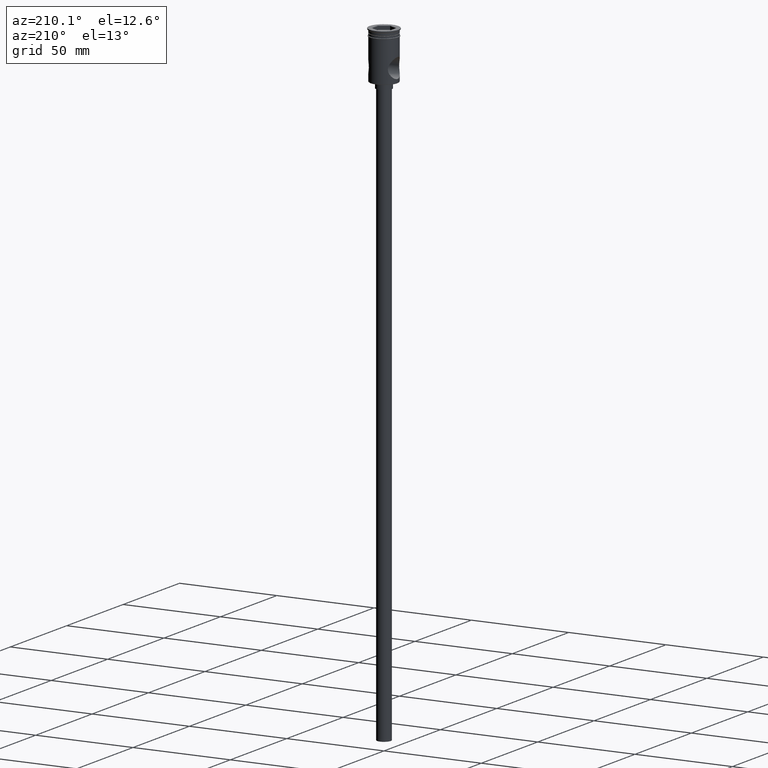
[diagram: clean part render]
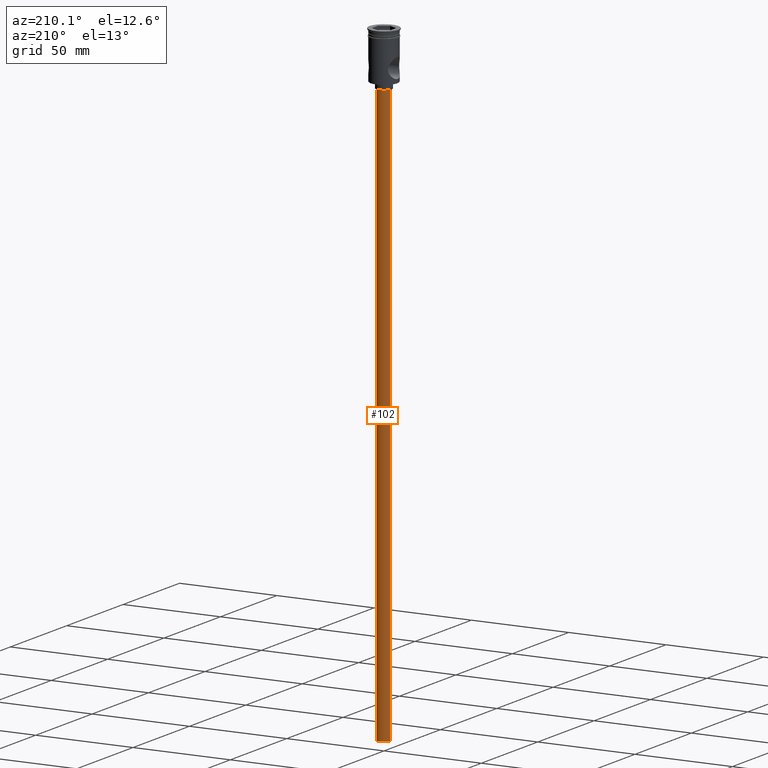
[diagram: same view with one face highlighted and labeled with its STEP entity id]
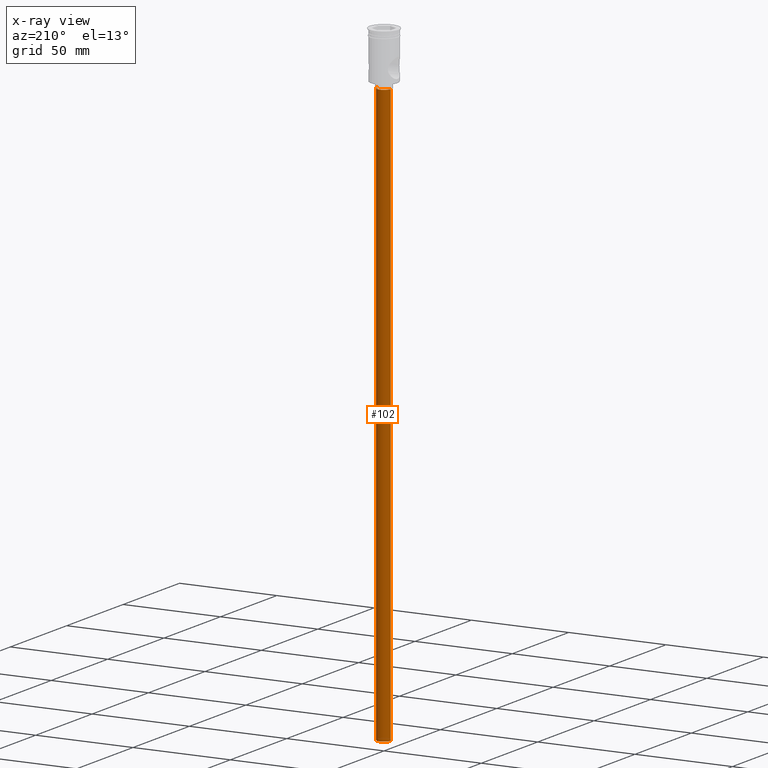
[diagram: x-ray of the same camera — body ghosted, the highlighted face saturated]
A machine part, auxiliary view. The second image highlights one B-rep face of the part: STEP entity #102.
The next image is the same camera in x-ray: the body ghosted, the highlighted face saturated — about 0% of this face is hidden behind the body in this view.
In plain terms, the highlighted cylindrical surface (edge-blend (fillet) strip) has radius 3.5 mm, axis along (-0, -0, 1).
Its self-contained STEP definition (entity closure, byte-faithful):
#1 = CARTESIAN_POINT ( 'NONE',  ( -3.500000000000000444, 4.286263797015737088E-16, -324.5000000000000000 ) ) ;
#43 = DIRECTION ( 'NONE',  ( -0.000000000000000000, -0.000000000000000000, 1.000000000000000000 ) ) ;
#92 = VECTOR ( 'NONE', #451, 1000.000000000000000 ) ;
#102 = ADVANCED_FACE ( 'NONE', ( #685 ), #586, .T. ) ;
#104 = CARTESIAN_POINT ( 'NONE',  ( -3.500000000000000444, 4.286263797015737088E-16, -324.5000000000000000 ) ) ;
#141 = CARTESIAN_POINT ( 'NONE',  ( 3.500000000000000444, 0.000000000000000000, -27.50000000000000000 ) ) ;
#243 = CARTESIAN_POINT ( 'NONE',  ( 3.500000000000000444, 0.000000000000000000, -324.5000000000000000 ) ) ;
#275 = ORIENTED_EDGE ( 'NONE', *, *, #1017, .F. ) ;
#290 = VERTEX_POINT ( 'NONE', #141 ) ;
#331 = EDGE_CURVE ( 'NONE', #1444, #1476, #623, .T. ) ;
#345 = CARTESIAN_POINT ( 'NONE',  ( 0.000000000000000000, 0.000000000000000000, -324.5000000000000000 ) ) ;
#365 = CARTESIAN_POINT ( 'NONE',  ( 0.000000000000000000, 0.000000000000000000, -27.50000000000000000 ) ) ;
#378 = DIRECTION ( 'NONE',  ( -1.000000000000000000, 0.000000000000000000, 0.000000000000000000 ) ) ;
#380 = VECTOR ( 'NONE', #43, 1000.000000000000000 ) ;
#414 = EDGE_LOOP ( 'NONE', ( #1264, #589, #716, #275 ) ) ;
#451 = DIRECTION ( 'NONE',  ( -0.000000000000000000, -0.000000000000000000, 1.000000000000000000 ) ) ;
#586 = CYLINDRICAL_SURFACE ( 'NONE', #1415, 3.500000000000000444 ) ;
#589 = ORIENTED_EDGE ( 'NONE', *, *, #331, .T. ) ;
#594 = DIRECTION ( 'NONE',  ( 0.000000000000000000, 0.000000000000000000, -1.000000000000000000 ) ) ;
#622 = CARTESIAN_POINT ( 'NONE',  ( -3.500000000000000444, 4.286263797015737088E-16, -27.50000000000000000 ) ) ;
#623 = LINE ( 'NONE', #1, #380 ) ;
#685 = FACE_OUTER_BOUND ( 'NONE', #414, .T. ) ;
#716 = ORIENTED_EDGE ( 'NONE', *, *, #1128, .T. ) ;
#750 = DIRECTION ( 'NONE',  ( 0.000000000000000000, 0.000000000000000000, -1.000000000000000000 ) ) ;
#792 = DIRECTION ( 'NONE',  ( -0.000000000000000000, -0.000000000000000000, 1.000000000000000000 ) ) ;
#896 = CARTESIAN_POINT ( 'NONE',  ( 0.000000000000000000, 0.000000000000000000, -324.5000000000000000 ) ) ;
#905 = LINE ( 'NONE', #1038, #92 ) ;
#998 = VERTEX_POINT ( 'NONE', #243 ) ;
#1017 = EDGE_CURVE ( 'NONE', #998, #290, #905, .T. ) ;
#1020 = CIRCLE ( 'NONE', #1440, 3.500000000000000444 ) ;
#1038 = CARTESIAN_POINT ( 'NONE',  ( 3.500000000000000444, 0.000000000000000000, -324.5000000000000000 ) ) ;
#1128 = EDGE_CURVE ( 'NONE', #1476, #290, #1198, .T. ) ;
#1198 = CIRCLE ( 'NONE', #1325, 3.500000000000000444 ) ;
#1264 = ORIENTED_EDGE ( 'NONE', *, *, #1371, .F. ) ;
#1325 = AXIS2_PLACEMENT_3D ( 'NONE', #365, #750, #378 ) ;
#1371 = EDGE_CURVE ( 'NONE', #1444, #998, #1020, .T. ) ;
#1415 = AXIS2_PLACEMENT_3D ( 'NONE', #896, #792, #1467 ) ;
#1440 = AXIS2_PLACEMENT_3D ( 'NONE', #345, #594, #1472 ) ;
#1444 = VERTEX_POINT ( 'NONE', #104 ) ;
#1467 = DIRECTION ( 'NONE',  ( 1.000000000000000000, 0.000000000000000000, 0.000000000000000000 ) ) ;
#1472 = DIRECTION ( 'NONE',  ( -1.000000000000000000, 0.000000000000000000, 0.000000000000000000 ) ) ;
#1476 = VERTEX_POINT ( 'NONE', #622 ) ;